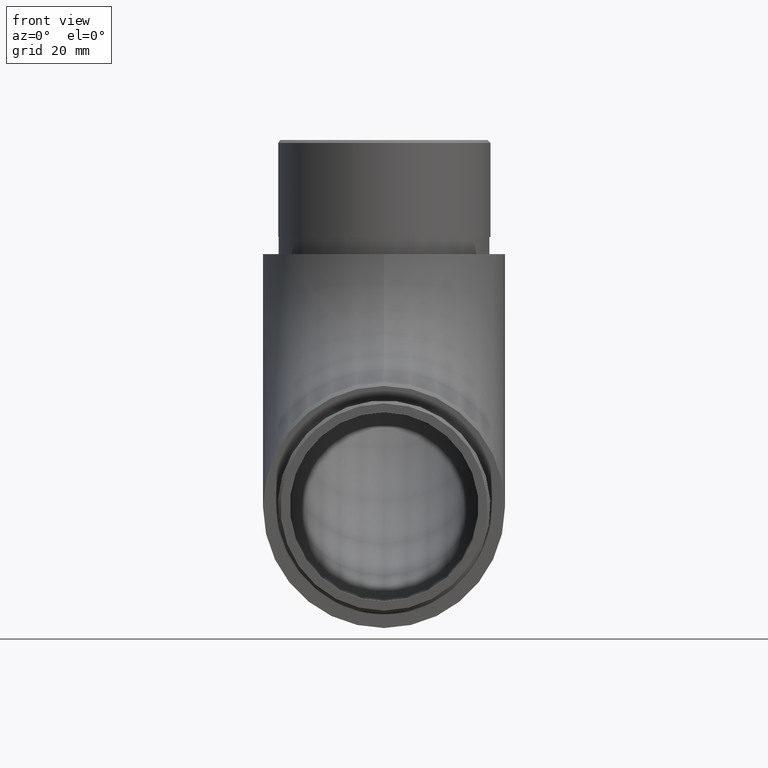
[diagram: clean part render]
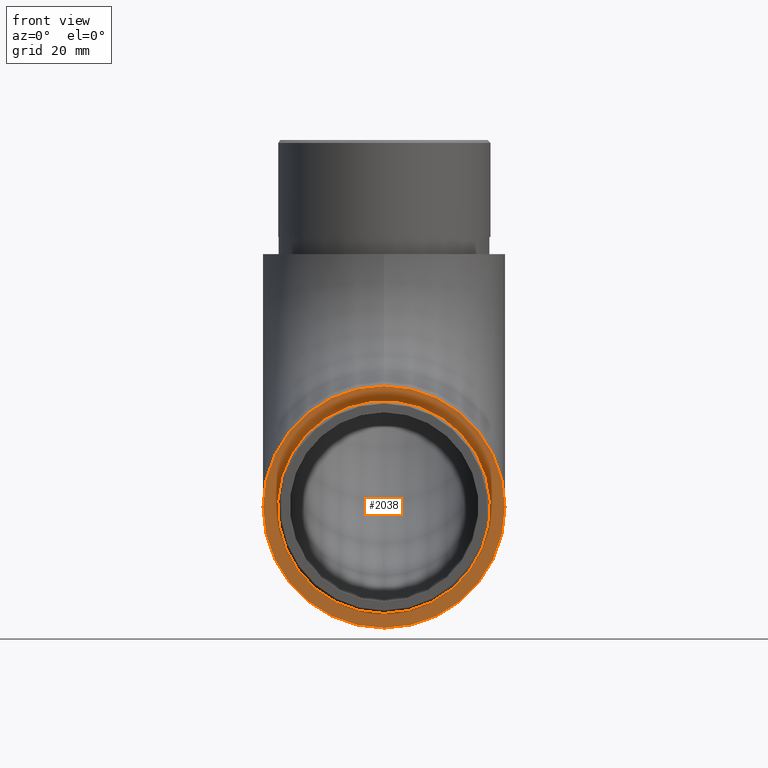
[diagram: same view with one face highlighted and labeled with its STEP entity id]
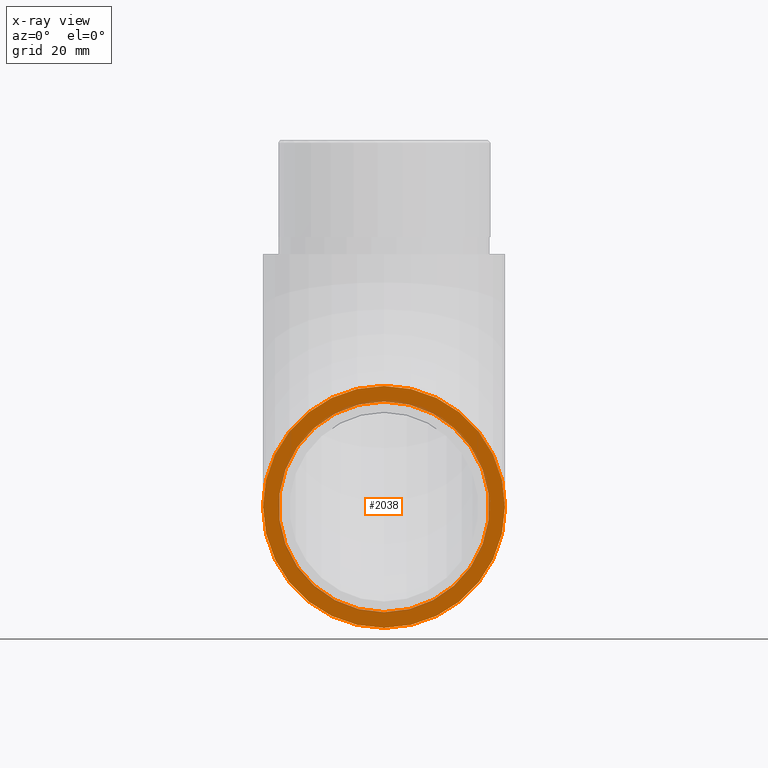
[diagram: x-ray of the same camera — body ghosted, the highlighted face saturated]
A machine part, front view. The second image highlights one B-rep face of the part: STEP entity #2038.
The next image is the same camera in x-ray: the body ghosted, the highlighted face saturated — about 7% of this face is hidden behind the body in this view.
In plain terms, the highlighted planar face has unit normal (0, 1, 0).
Its self-contained STEP definition (entity closure, byte-faithful):
#6 = FACE_BOUND ( 'NONE', #2057, .T. ) ;
#1074 = CIRCLE ( 'NONE', #1855, 21.19999999999999900 ) ;
#1366 = EDGE_CURVE ( 'NONE', #5856, #5856, #3966, .T. ) ;
#1454 = AXIS2_PLACEMENT_3D ( 'NONE', #6260, #7310, #2079 ) ;
#1855 = AXIS2_PLACEMENT_3D ( 'NONE', #4174, #3027, #5043 ) ;
#1958 = CARTESIAN_POINT ( 'NONE',  ( 0.0000000000000000000, 0.0000000000000000000, 42.39999999999999900 ) ) ;
#2038 = ADVANCED_FACE ( 'NONE', ( #2815, #6 ), #3296, .F. ) ;
#2057 = EDGE_LOOP ( 'NONE', ( #12573 ) ) ;
#2079 = DIRECTION ( 'NONE',  ( 0.0000000000000000000, -0.0000000000000000000, 1.000000000000000000 ) ) ;
#2815 = FACE_OUTER_BOUND ( 'NONE', #3116, .T. ) ;
#3027 = DIRECTION ( 'NONE',  ( 0.0000000000000000000, 1.000000000000000000, 0.0000000000000000000 ) ) ;
#3116 = EDGE_LOOP ( 'NONE', ( #11654 ) ) ;
#3296 = PLANE ( 'NONE',  #1454 ) ;
#3966 = CIRCLE ( 'NONE', #12053, 18.45000000000000300 ) ;
#4174 = CARTESIAN_POINT ( 'NONE',  ( 0.0000000000000000000, 0.0000000000000000000, 21.19999999999999900 ) ) ;
#5043 = DIRECTION ( 'NONE',  ( 0.0000000000000000000, 0.0000000000000000000, 1.000000000000000000 ) ) ;
#5856 = VERTEX_POINT ( 'NONE', #12403 ) ;
#6260 = CARTESIAN_POINT ( 'NONE',  ( 0.0000000000000000000, 0.0000000000000000000, 21.19999999999999900 ) ) ;
#7236 = EDGE_CURVE ( 'NONE', #12616, #12616, #1074, .T. ) ;
#7310 = DIRECTION ( 'NONE',  ( 0.0000000000000000000, 1.000000000000000000, 0.0000000000000000000 ) ) ;
#8426 = CARTESIAN_POINT ( 'NONE',  ( 0.0000000000000000000, 0.0000000000000000000, 21.20000000000000300 ) ) ;
#10748 = DIRECTION ( 'NONE',  ( 0.0000000000000000000, 0.0000000000000000000, 1.000000000000000000 ) ) ;
#11654 = ORIENTED_EDGE ( 'NONE', *, *, #7236, .F. ) ;
#11778 = DIRECTION ( 'NONE',  ( -0.0000000000000000000, -1.000000000000000000, -0.0000000000000000000 ) ) ;
#12053 = AXIS2_PLACEMENT_3D ( 'NONE', #8426, #11778, #10748 ) ;
#12403 = CARTESIAN_POINT ( 'NONE',  ( 0.0000000000000000000, 0.0000000000000000000, 39.65000000000000600 ) ) ;
#12573 = ORIENTED_EDGE ( 'NONE', *, *, #1366, .F. ) ;
#12616 = VERTEX_POINT ( 'NONE', #1958 ) ;